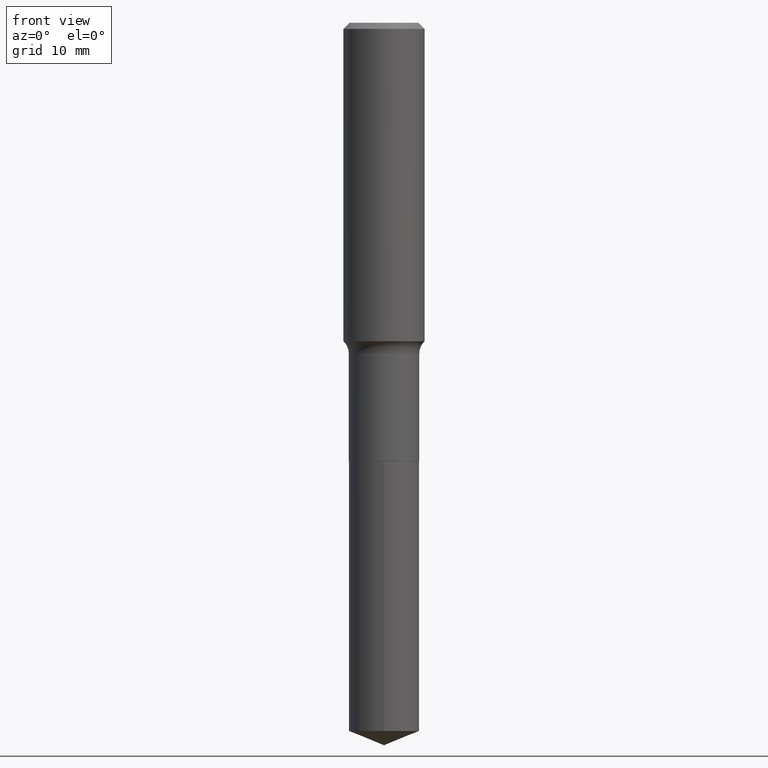
[diagram: clean part render]
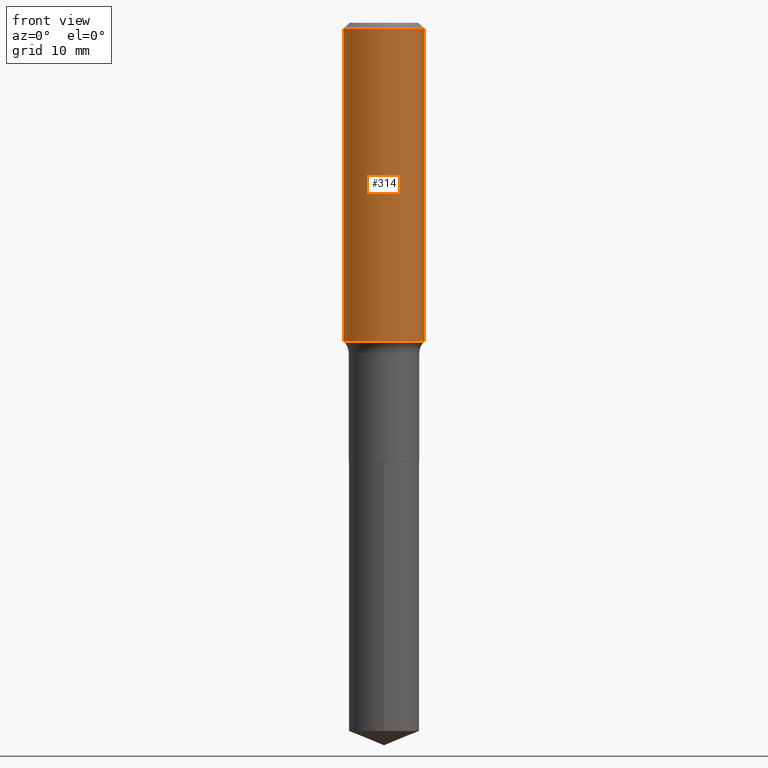
[diagram: same view with one face highlighted and labeled with its STEP entity id]
A machine part, front view. The second image highlights one B-rep face of the part: STEP entity #314.
In plain terms, the highlighted cylindrical surface (partial cylindrical patch) has radius 5 mm, axis along (-0, 0, 1).
Its self-contained STEP definition (entity closure, byte-faithful):
#20 = LINE ( 'NONE', #434, #363 ) ;
#23 = CARTESIAN_POINT ( 'NONE',  ( 0.1968500000000002470, -6.766569378089535808E-15, -1.544322495727142641 ) ) ;
#24 = VECTOR ( 'NONE', #76, 39.37007874015748143 ) ;
#40 = ORIENTED_EDGE ( 'NONE', *, *, #81, .F. ) ;
#50 = DIRECTION ( 'NONE',  ( -2.445468806185136597E-29, 3.491481338843145583E-15, 1.000000000000000000 ) ) ;
#71 = VERTEX_POINT ( 'NONE', #23 ) ;
#75 = DIRECTION ( 'NONE',  ( -2.445468806185136597E-29, 3.491481338843145583E-15, 1.000000000000000000 ) ) ;
#76 = DIRECTION ( 'NONE',  ( -2.445468806185136877E-29, 3.491481338843145188E-15, 1.000000000000000000 ) ) ;
#81 = EDGE_CURVE ( 'NONE', #191, #268, #316, .T. ) ;
#94 = CARTESIAN_POINT ( 'NONE',  ( -0.1968500000000002470, -3.993269799643232468E-15, -1.544322495727142641 ) ) ;
#97 = EDGE_CURVE ( 'NONE', #191, #71, #304, .T. ) ;
#101 = ORIENTED_EDGE ( 'NONE', *, *, #97, .T. ) ;
#102 = EDGE_CURVE ( 'NONE', #71, #177, #20, .T. ) ;
#107 = AXIS2_PLACEMENT_3D ( 'NONE', #356, #112, #159 ) ;
#108 = AXIS2_PLACEMENT_3D ( 'NONE', #287, #50, #118 ) ;
#112 = DIRECTION ( 'NONE',  ( -2.445468806185136597E-29, 3.491481338843145583E-15, 1.000000000000000000 ) ) ;
#118 = DIRECTION ( 'NONE',  ( 1.000000000000000000, -6.982962677686266711E-15, 4.876176775795935793E-29 ) ) ;
#137 = AXIS2_PLACEMENT_3D ( 'NONE', #208, #75, #214 ) ;
#149 = ORIENTED_EDGE ( 'NONE', *, *, #288, .F. ) ;
#159 = DIRECTION ( 'NONE',  ( 1.000000000000000000, -6.982962677686269866E-15, 0.000000000000000000 ) ) ;
#164 = DIRECTION ( 'NONE',  ( -2.445468806185136877E-29, 3.491481338843145188E-15, 1.000000000000000000 ) ) ;
#177 = VERTEX_POINT ( 'NONE', #467 ) ;
#191 = VERTEX_POINT ( 'NONE', #94 ) ;
#208 = CARTESIAN_POINT ( 'NONE',  ( 7.220858017463209485E-31, -1.030947152326916609E-16, -0.02952750000000019595 ) ) ;
#210 = CARTESIAN_POINT ( 'NONE',  ( -0.1968500000000000527, -1.348830569766083183E-15, -0.02952750000000019595 ) ) ;
#214 = DIRECTION ( 'NONE',  ( 1.000000000000000000, -6.982962677686266711E-15, 0.000000000000000000 ) ) ;
#249 = FACE_OUTER_BOUND ( 'NONE', #281, .T. ) ;
#268 = VERTEX_POINT ( 'NONE', #210 ) ;
#281 = EDGE_LOOP ( 'NONE', ( #40, #101, #458, #149 ) ) ;
#287 = CARTESIAN_POINT ( 'NONE',  ( 0.000000000000000000, 0.000000000000000000, 0.000000000000000000 ) ) ;
#288 = EDGE_CURVE ( 'NONE', #268, #177, #298, .T. ) ;
#298 = CIRCLE ( 'NONE', #137, 0.1968500000000000527 ) ;
#304 = CIRCLE ( 'NONE', #107, 0.1968500000000002470 ) ;
#314 = ADVANCED_FACE ( 'NONE', ( #249 ), #401, .T. ) ;
#316 = LINE ( 'NONE', #358, #24 ) ;
#356 = CARTESIAN_POINT ( 'NONE',  ( 3.776592489990706683E-29, -5.391973174986991833E-15, -1.544322495727142641 ) ) ;
#358 = CARTESIAN_POINT ( 'NONE',  ( -0.1968500000000001360, 1.398703375343758182E-15, -9.682923725166790684E-30 ) ) ;
#363 = VECTOR ( 'NONE', #164, 39.37007874015748143 ) ;
#401 = CYLINDRICAL_SURFACE ( 'NONE', #108, 0.1968500000000001360 ) ;
#434 = CARTESIAN_POINT ( 'NONE',  ( 0.1968500000000001360, -1.374596203102542594E-15, 9.598753983154306463E-30 ) ) ;
#458 = ORIENTED_EDGE ( 'NONE', *, *, #102, .T. ) ;
#467 = CARTESIAN_POINT ( 'NONE',  ( 0.1968500000000000527, -1.477690918335233688E-15, -0.02952750000000019595 ) ) ;